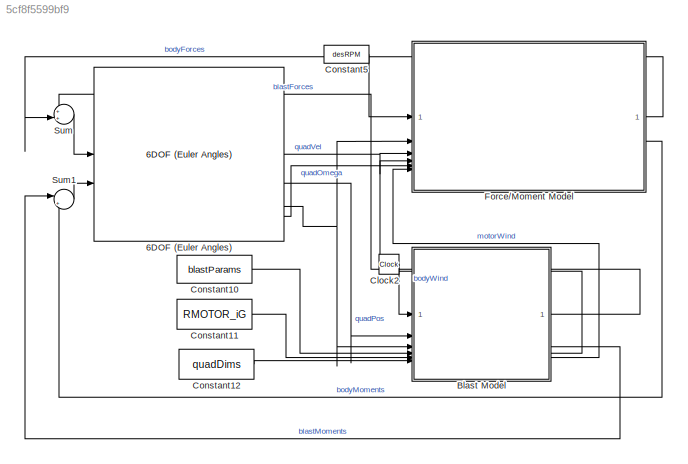
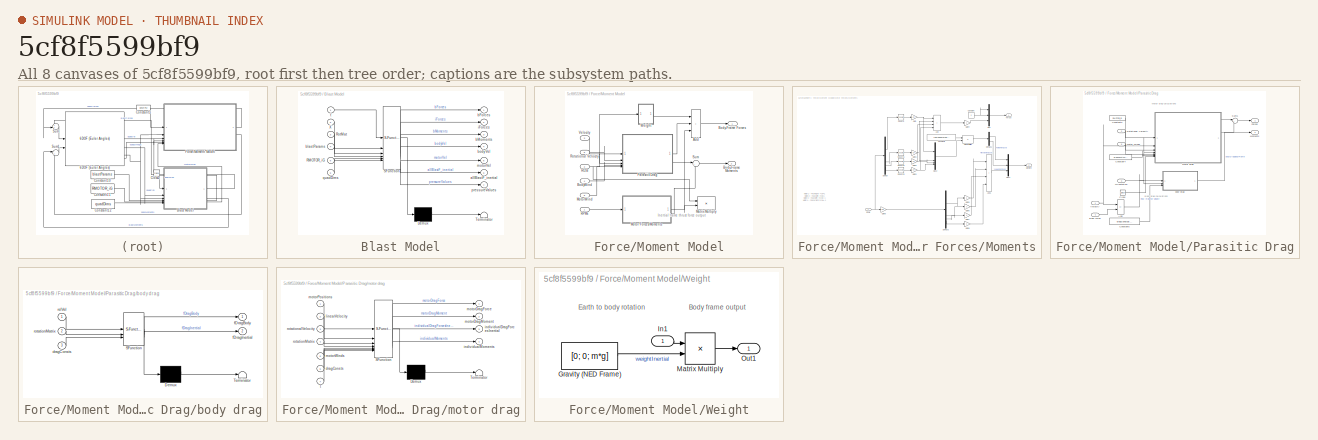
[diagram: thumbnail index - all 8 canvases of the model, root first then tree order]
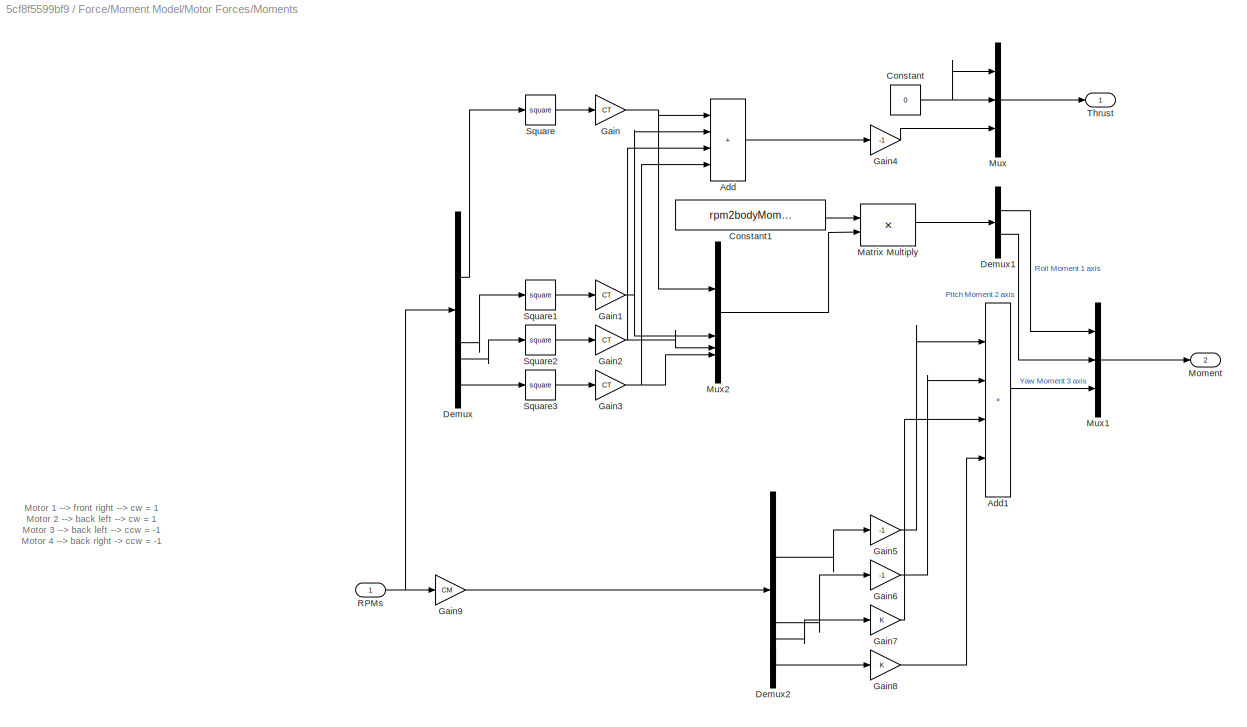
MODEL slx_5cf8f5599bf9
KIND model
CONFIG AbsTol = auto
CONFIG EnableMultiTasking = off
CONFIG FixedStep = auto
CONFIG MaxStep = auto
CONFIG MinStep = auto
CONFIG RelTol = 1e-3
CONFIG SampleTimeConstraint = Unconstrained
CONFIG SolverName = VariableStepAuto
CONFIG StartTime = 0.0
CONFIG StopTime = 10
BLOCK [Reference] 6DOF (Euler Angles)  REF=aerolibobsolete/6DOF (Euler Angles)
  SourceBlock = aerolibobsolete/6DOF (Euler Angles)
  SourceType = 6DOF EoM (Body Axis)
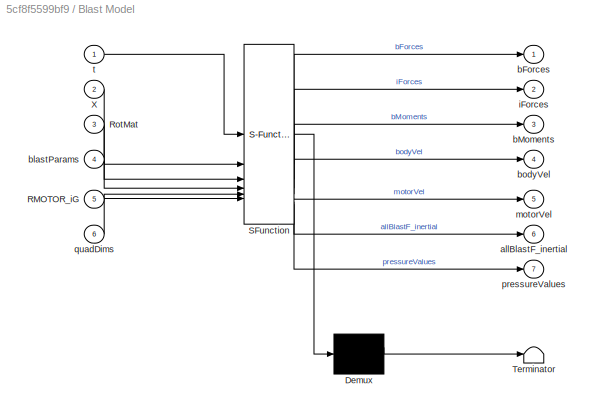
BLOCK [SubSystem] Blast Model
  ErrorFcn = Stateflow.Translate.translate
  PermitHierarchicalResolution = ExplicitOnly
  SFBlockType = MATLAB Function
  ShowPortLabels = none
  TreatAsAtomicUnit = on
BLOCK [Demux] Blast Model/ Demux 
  Outputs = 1
BLOCK [S-Function] Blast Model/ SFunction 
  EnableBusSupport = off
  FunctionName = sf_sfun
  PortCounts = [6 8]
  SFcnIsStateOwnerBlock = off
  SFunctionDeploymentMode = off
  Tag = Stateflow S-Function 3
BLOCK [Terminator] Blast Model/ Terminator 
BLOCK [Inport] Blast Model/RMOTOR_iG
  Port = 5
BLOCK [Inport] Blast Model/RotMat
  Port = 3
BLOCK [Inport] Blast Model/X
  Port = 2
BLOCK [Outport] Blast Model/allBlastF_inertial
  Port = 6
BLOCK [Outport] Blast Model/bForces
BLOCK [Outport] Blast Model/bMoments
  Port = 3
BLOCK [Inport] Blast Model/blastParams
  Port = 4
BLOCK [Outport] Blast Model/bodyVel
  Port = 4
BLOCK [Outport] Blast Model/iForces
  Port = 2
BLOCK [Outport] Blast Model/motorVel
  Port = 5
BLOCK [Outport] Blast Model/pressureValues
  Port = 7
BLOCK [Inport] Blast Model/quadDims
  Port = 6
BLOCK [Inport] Blast Model/t
BLOCK [Clock] Clock2
BLOCK [Constant] Constant10
  Value = blastParams
BLOCK [Constant] Constant11
  Value = RMOTOR_iG
BLOCK [Constant] Constant12
  Value = quadDims
BLOCK [Constant] Constant5
  Value = desRPM
BLOCK [SubSystem] Force//Moment Model
  ShowPortLabels = none
BLOCK [Sum] Force//Moment Model/Add
  IconShape = rectangular
  Inputs = +++
BLOCK [Outport] Force//Moment Model/Body-Frame Forces
BLOCK [Outport] Force//Moment Model/Body-Frame Moments
  Port = 2
BLOCK [Inport] Force//Moment Model/BodyWind
  Port = 4
BLOCK [Product] Force//Moment Model/Matrix Multiply
  Multiplication = Matrix(*)
BLOCK [SubSystem] Force//Moment Model/Motor Forces//Moments
BLOCK [Sum] Force//Moment Model/Motor Forces//Moments/Add
  IconShape = rectangular
  Inputs = ++++
BLOCK [Sum] Force//Moment Model/Motor Forces//Moments/Add1
  IconShape = rectangular
  Inputs = ++++
BLOCK [Constant] Force//Moment Model/Motor Forces//Moments/Constant
  Value = 0
BLOCK [Constant] Force//Moment Model/Motor Forces//Moments/Constant1
  Value = rpm2bodyMomentRollPitch
BLOCK [Demux] Force//Moment Model/Motor Forces//Moments/Demux
  NameLocation = left
BLOCK [Demux] Force//Moment Model/Motor Forces//Moments/Demux1
  Outputs = 2
BLOCK [Demux] Force//Moment Model/Motor Forces//Moments/Demux2
  NameLocation = left
BLOCK [Gain] Force//Moment Model/Motor Forces//Moments/Gain
  Gain = CT
BLOCK [Gain] Force//Moment Model/Motor Forces//Moments/Gain1
  Gain = CT
BLOCK [Gain] Force//Moment Model/Motor Forces//Moments/Gain2
  Gain = CT
BLOCK [Gain] Force//Moment Model/Motor Forces//Moments/Gain3
  Gain = CT
BLOCK [Gain] Force//Moment Model/Motor Forces//Moments/Gain4
  Gain = -1
BLOCK [Gain] Force//Moment Model/Motor Forces//Moments/Gain5
  Gain = -1
BLOCK [Gain] Force//Moment Model/Motor Forces//Moments/Gain6
  Gain = -1
BLOCK [Gain] Force//Moment Model/Motor Forces//Moments/Gain7
BLOCK [Gain] Force//Moment Model/Motor Forces//Moments/Gain8
BLOCK [Gain] Force//Moment Model/Motor Forces//Moments/Gain9
  Gain = CM
BLOCK [Product] Force//Moment Model/Motor Forces//Moments/Matrix Multiply
  Multiplication = Matrix(*)
BLOCK [Outport] Force//Moment Model/Motor Forces//Moments/Moment
  Port = 2
BLOCK [Mux] Force//Moment Model/Motor Forces//Moments/Mux
  DisplayOption = bar
  Inputs = 3
BLOCK [Mux] Force//Moment Model/Motor Forces//Moments/Mux1
  DisplayOption = bar
  Inputs = 3
BLOCK [Mux] Force//Moment Model/Motor Forces//Moments/Mux2
  DisplayOption = bar
BLOCK [Inport] Force//Moment Model/Motor Forces//Moments/RPMs
BLOCK [Math] Force//Moment Model/Motor Forces//Moments/Square
  Operator = square
BLOCK [Math] Force//Moment Model/Motor Forces//Moments/Square1
  Operator = square
BLOCK [Math] Force//Moment Model/Motor Forces//Moments/Square2
  Operator = square
BLOCK [Math] Force//Moment Model/Motor Forces//Moments/Square3
  Operator = square
BLOCK [Outport] Force//Moment Model/Motor Forces//Moments/Thrust
BLOCK [Inport] Force//Moment Model/MotorWind
  Port = 6
BLOCK [SubSystem] Force//Moment Model/Parasitic Drag
BLOCK [Sum] Force//Moment Model/Parasitic Drag/Add
  IconShape = rectangular
  Inputs = +-
BLOCK [Inport] Force//Moment Model/Parasitic Drag/Body Wind
  Port = 4
BLOCK [Clock] Force//Moment Model/Parasitic Drag/Clock
BLOCK [Constant] Force//Moment Model/Parasitic Drag/Constant3
  Value = RMOTOR_iG
BLOCK [Constant] Force//Moment Model/Parasitic Drag/Constant4
  Value = dragConstsMotor
BLOCK [Constant] Force//Moment Model/Parasitic Drag/Constant5
  Value = dragConstsBody
BLOCK [Outport] Force//Moment Model/Parasitic Drag/Forces
BLOCK [Outport] Force//Moment Model/Parasitic Drag/Moments
  Port = 2
BLOCK [Inport] Force//Moment Model/Parasitic Drag/Motor Winds
  Port = 5
BLOCK [Inport] Force//Moment Model/Parasitic Drag/Orientation
  Port = 3
BLOCK [Inport] Force//Moment Model/Parasitic Drag/Rotational Velocity
  Port = 2
BLOCK [Sum] Force//Moment Model/Parasitic Drag/Sum1
  Inputs = |++
BLOCK [Inport] Force//Moment Model/Parasitic Drag/Velocity
BLOCK [SubSystem] Force//Moment Model/Parasitic Drag/body drag
  ErrorFcn = Stateflow.Translate.translate
  PermitHierarchicalResolution = ExplicitOnly
  SFBlockType = MATLAB Function
  TreatAsAtomicUnit = on
BLOCK [Demux] Force//Moment Model/Parasitic Drag/body drag/ Demux 
  Outputs = 1
BLOCK [S-Function] Force//Moment Model/Parasitic Drag/body drag/ SFunction 
  EnableBusSupport = off
  FunctionName = sf_sfun
  PortCounts = [3 3]
  SFcnIsStateOwnerBlock = off
  SFunctionDeploymentMode = off
  Tag = Stateflow S-Function 6
BLOCK [Terminator] Force//Moment Model/Parasitic Drag/body drag/ Terminator 
BLOCK [Inport] Force//Moment Model/Parasitic Drag/body drag/dragConsts
  Port = 3
BLOCK [Outport] Force//Moment Model/Parasitic Drag/body drag/fDragBody
BLOCK [Outport] Force//Moment Model/Parasitic Drag/body drag/fDragInertial
  Port = 2
BLOCK [Inport] Force//Moment Model/Parasitic Drag/body drag/relVel
BLOCK [Inport] Force//Moment Model/Parasitic Drag/body drag/rotationMatrix
  Port = 2
BLOCK [SubSystem] Force//Moment Model/Parasitic Drag/motor drag
  ErrorFcn = Stateflow.Translate.translate
  PermitHierarchicalResolution = ExplicitOnly
  SFBlockType = MATLAB Function
  TreatAsAtomicUnit = on
BLOCK [Demux] Force//Moment Model/Parasitic Drag/motor drag/ Demux 
  Outputs = 1
BLOCK [S-Function] Force//Moment Model/Parasitic Drag/motor drag/ SFunction 
  EnableBusSupport = off
  FunctionName = sf_sfun
  PortCounts = [7 5]
  SFcnIsStateOwnerBlock = off
  SFunctionDeploymentMode = off
  Tag = Stateflow S-Function 5
BLOCK [Terminator] Force//Moment Model/Parasitic Drag/motor drag/ Terminator 
BLOCK [Inport] Force//Moment Model/Parasitic Drag/motor drag/dragConsts
  Port = 6
BLOCK [Outport] Force//Moment Model/Parasitic Drag/motor drag/individualDragForcesInertial
  Port = 3
BLOCK [Outport] Force//Moment Model/Parasitic Drag/motor drag/individualMoments
  Port = 4
BLOCK [Inport] Force//Moment Model/Parasitic Drag/motor drag/linearVelocity
  Port = 2
BLOCK [Outport] Force//Moment Model/Parasitic Drag/motor drag/motorDragForce
BLOCK [Outport] Force//Moment Model/Parasitic Drag/motor drag/motorDragMoment
  Port = 2
BLOCK [Inport] Force//Moment Model/Parasitic Drag/motor drag/motorPositions
BLOCK [Inport] Force//Moment Model/Parasitic Drag/motor drag/motorWinds
  Port = 5
BLOCK [Inport] Force//Moment Model/Parasitic Drag/motor drag/rotationMatrix
  Port = 4
BLOCK [Inport] Force//Moment Model/Parasitic Drag/motor drag/rotationalVelocity
  Port = 3
BLOCK [Inport] Force//Moment Model/Parasitic Drag/motor drag/t
  Port = 7
BLOCK [Inport] Force//Moment Model/RI2B
  Port = 2
BLOCK [Inport] Force//Moment Model/RPMs
BLOCK [Inport] Force//Moment Model/Rotational Velocity
  Port = 5
BLOCK [Sum] Force//Moment Model/Sum
  Inputs = |++
BLOCK [Inport] Force//Moment Model/Velocity
  Port = 3
BLOCK [SubSystem] Force//Moment Model/Weight
BLOCK [Constant] Force//Moment Model/Weight/Gravity (NED Frame)
  Value = [0; 0; m*g]
BLOCK [Inport] Force//Moment Model/Weight/In1
BLOCK [Product] Force//Moment Model/Weight/Matrix Multiply
  Multiplication = Matrix(*)
BLOCK [Outport] Force//Moment Model/Weight/Out1
BLOCK [Sum] Sum
  Inputs = ++|
  NameLocation = top
BLOCK [Sum] Sum1
  Inputs = |++
ANNOTATION Force//Moment Model: Inertial frame thrust force output
ANNOTATION Force//Moment Model/Motor Forces//Moments: Motor 1 --> front right --> cw = 1 Motor 2 --> back left --> cw = 1 Motor 3 --> back left --> ccw = -1 Motor 4 --> back right -> ccw = -1
ANNOTATION Force//Moment Model/Parasitic Drag: Body drag calculations
ANNOTATION Force//Moment Model/Parasitic Drag: Motor drag calculations
ANNOTATION Force//Moment Model/Weight: Body frame output
ANNOTATION Force//Moment Model/Weight: Earth to body rotation
LINE 6DOF (Euler Angles):1 -> Force//Moment Model:3
LINE 6DOF (Euler Angles):2 -> Blast Model:2
NET 6DOF (Euler Angles):4 -> Blast Model:3, Force//Moment Model:2
LINE 6DOF (Euler Angles):6 -> Force//Moment Model:5
LINE Blast Model:1 -> Sum:1
LINE Blast Model:3 -> Sum1:1
LINE Blast Model:4 -> Force//Moment Model:4
LINE Blast Model:5 -> Force//Moment Model:6
LINE Clock2:1 -> Blast Model:1
LINE Constant10:1 -> Blast Model:4
LINE Constant11:1 -> Blast Model:5
LINE Constant12:1 -> Blast Model:6
LINE Constant5:1 -> Force//Moment Model:1
LINE Force//Moment Model/Add:1 -> Force//Moment Model/Body-Frame Forces:1
LINE Force//Moment Model/BodyWind:1 -> Force//Moment Model/Parasitic Drag:4
LINE Force//Moment Model/Motor Forces//Moments/Add1:1 -> Force//Moment Model/Motor Forces//Moments/Mux1:3
LINE Force//Moment Model/Motor Forces//Moments/Add:1 -> Force//Moment Model/Motor Forces//Moments/Gain4:1
LINE Force//Moment Model/Motor Forces//Moments/Constant1:1 -> Force//Moment Model/Motor Forces//Moments/Matrix Multiply:1
NET Force//Moment Model/Motor Forces//Moments/Constant:1 -> Force//Moment Model/Motor Forces//Moments/Mux:1, Force//Moment Model/Motor Forces//Moments/Mux:2
LINE Force//Moment Model/Motor Forces//Moments/Demux1:1 -> Force//Moment Model/Motor Forces//Moments/Mux1:1
LINE Force//Moment Model/Motor Forces//Moments/Demux1:2 -> Force//Moment Model/Motor Forces//Moments/Mux1:2
LINE Force//Moment Model/Motor Forces//Moments/Demux2:1 -> Force//Moment Model/Motor Forces//Moments/Gain5:1
LINE Force//Moment Model/Motor Forces//Moments/Demux2:2 -> Force//Moment Model/Motor Forces//Moments/Gain6:1
LINE Force//Moment Model/Motor Forces//Moments/Demux2:3 -> Force//Moment Model/Motor Forces//Moments/Gain7:1
LINE Force//Moment Model/Motor Forces//Moments/Demux2:4 -> Force//Moment Model/Motor Forces//Moments/Gain8:1
LINE Force//Moment Model/Motor Forces//Moments/Demux:1 -> Force//Moment Model/Motor Forces//Moments/Square:1
LINE Force//Moment Model/Motor Forces//Moments/Demux:2 -> Force//Moment Model/Motor Forces//Moments/Square1:1
LINE Force//Moment Model/Motor Forces//Moments/Demux:3 -> Force//Moment Model/Motor Forces//Moments/Square2:1
LINE Force//Moment Model/Motor Forces//Moments/Demux:4 -> Force//Moment Model/Motor Forces//Moments/Square3:1
NET Force//Moment Model/Motor Forces//Moments/Gain1:1 -> Force//Moment Model/Motor Forces//Moments/Add:2, Force//Moment Model/Motor Forces//Moments/Mux2:2
NET Force//Moment Model/Motor Forces//Moments/Gain2:1 -> Force//Moment Model/Motor Forces//Moments/Add:3, Force//Moment Model/Motor Forces//Moments/Mux2:3
NET Force//Moment Model/Motor Forces//Moments/Gain3:1 -> Force//Moment Model/Motor Forces//Moments/Add:4, Force//Moment Model/Motor Forces//Moments/Mux2:4
LINE Force//Moment Model/Motor Forces//Moments/Gain4:1 -> Force//Moment Model/Motor Forces//Moments/Mux:3
LINE Force//Moment Model/Motor Forces//Moments/Gain5:1 -> Force//Moment Model/Motor Forces//Moments/Add1:1
LINE Force//Moment Model/Motor Forces//Moments/Gain6:1 -> Force//Moment Model/Motor Forces//Moments/Add1:2
LINE Force//Moment Model/Motor Forces//Moments/Gain7:1 -> Force//Moment Model/Motor Forces//Moments/Add1:3
LINE Force//Moment Model/Motor Forces//Moments/Gain8:1 -> Force//Moment Model/Motor Forces//Moments/Add1:4
LINE Force//Moment Model/Motor Forces//Moments/Gain9:1 -> Force//Moment Model/Motor Forces//Moments/Demux2:1
NET Force//Moment Model/Motor Forces//Moments/Gain:1 -> Force//Moment Model/Motor Forces//Moments/Add:1, Force//Moment Model/Motor Forces//Moments/Mux2:1
LINE Force//Moment Model/Motor Forces//Moments/Matrix Multiply:1 -> Force//Moment Model/Motor Forces//Moments/Demux1:1
LINE Force//Moment Model/Motor Forces//Moments/Mux1:1 -> Force//Moment Model/Motor Forces//Moments/Moment:1
LINE Force//Moment Model/Motor Forces//Moments/Mux2:1 -> Force//Moment Model/Motor Forces//Moments/Matrix Multiply:2
LINE Force//Moment Model/Motor Forces//Moments/Mux:1 -> Force//Moment Model/Motor Forces//Moments/Thrust:1
NET Force//Moment Model/Motor Forces//Moments/RPMs:1 -> Force//Moment Model/Motor Forces//Moments/Demux:1, Force//Moment Model/Motor Forces//Moments/Gain9:1
LINE Force//Moment Model/Motor Forces//Moments/Square1:1 -> Force//Moment Model/Motor Forces//Moments/Gain1:1
LINE Force//Moment Model/Motor Forces//Moments/Square2:1 -> Force//Moment Model/Motor Forces//Moments/Gain2:1
LINE Force//Moment Model/Motor Forces//Moments/Square3:1 -> Force//Moment Model/Motor Forces//Moments/Gain3:1
LINE Force//Moment Model/Motor Forces//Moments/Square:1 -> Force//Moment Model/Motor Forces//Moments/Gain:1
NET Force//Moment Model/Motor Forces//Moments:1 -> Force//Moment Model/Add:3, Force//Moment Model/Matrix Multiply:2
LINE Force//Moment Model/Motor Forces//Moments:2 -> Force//Moment Model/Sum:2
LINE Force//Moment Model/MotorWind:1 -> Force//Moment Model/Parasitic Drag:5
LINE Force//Moment Model/Parasitic Drag/Add:1 -> Force//Moment Model/Parasitic Drag/body drag:1
LINE Force//Moment Model/Parasitic Drag/Body Wind:1 -> Force//Moment Model/Parasitic Drag/Add:2
LINE Force//Moment Model/Parasitic Drag/Clock:1 -> Force//Moment Model/Parasitic Drag/motor drag:7
LINE Force//Moment Model/Parasitic Drag/Constant3:1 -> Force//Moment Model/Parasitic Drag/motor drag:1
LINE Force//Moment Model/Parasitic Drag/Constant4:1 -> Force//Moment Model/Parasitic Drag/motor drag:6
LINE Force//Moment Model/Parasitic Drag/Constant5:1 -> Force//Moment Model/Parasitic Drag/body drag:3
LINE Force//Moment Model/Parasitic Drag/Motor Winds:1 -> Force//Moment Model/Parasitic Drag/motor drag:5
NET Force//Moment Model/Parasitic Drag/Orientation:1 -> Force//Moment Model/Parasitic Drag/body drag:2, Force//Moment Model/Parasitic Drag/motor drag:4
LINE Force//Moment Model/Parasitic Drag/Rotational Velocity:1 -> Force//Moment Model/Parasitic Drag/motor drag:3
LINE Force//Moment Model/Parasitic Drag/Sum1:1 -> Force//Moment Model/Parasitic Drag/Forces:1
NET Force//Moment Model/Parasitic Drag/Velocity:1 -> Force//Moment Model/Parasitic Drag/Add:1, Force//Moment Model/Parasitic Drag/motor drag:2
LINE Force//Moment Model/Parasitic Drag/body drag:1 -> Force//Moment Model/Parasitic Drag/Sum1:2
LINE Force//Moment Model/Parasitic Drag/motor drag:1 -> Force//Moment Model/Parasitic Drag/Sum1:1
LINE Force//Moment Model/Parasitic Drag/motor drag:2 -> Force//Moment Model/Parasitic Drag/Moments:1
LINE Force//Moment Model/Parasitic Drag:1 -> Force//Moment Model/Add:2
LINE Force//Moment Model/Parasitic Drag:2 -> Force//Moment Model/Sum:1
NET Force//Moment Model/RI2B:1 -> Force//Moment Model/Matrix Multiply:1, Force//Moment Model/Parasitic Drag:3, Force//Moment Model/Weight:1
LINE Force//Moment Model/RPMs:1 -> Force//Moment Model/Motor Forces//Moments:1
LINE Force//Moment Model/Rotational Velocity:1 -> Force//Moment Model/Parasitic Drag:2
LINE Force//Moment Model/Sum:1 -> Force//Moment Model/Body-Frame Moments:1
LINE Force//Moment Model/Velocity:1 -> Force//Moment Model/Parasitic Drag:1
LINE Force//Moment Model/Weight/Gravity (NED Frame):1 -> Force//Moment Model/Weight/Matrix Multiply:2
LINE Force//Moment Model/Weight/In1:1 -> Force//Moment Model/Weight/Matrix Multiply:1
LINE Force//Moment Model/Weight/Matrix Multiply:1 -> Force//Moment Model/Weight/Out1:1
LINE Force//Moment Model/Weight:1 -> Force//Moment Model/Add:1
LINE Force//Moment Model:1 -> Sum:2
LINE Force//Moment Model:2 -> Sum1:2
LINE Sum1:1 -> 6DOF (Euler Angles):2
LINE Sum:1 -> 6DOF (Euler Angles):1
note: NET lines group one-source signal fan-out (src -> all destinations, sorted); 1:1 wires keep LINE
CHART Blast Model states=1 transitions=1
  STATE_LABEL 'eML_blk_kernel()'
  STATE_LABEL 'SCRIPT:\nfunction [bForces, iForces, bMoments, bodyVel, motorVel, allBlastF_inertial, pressureValues] = blastFMCalc(t, X, RotMat, blastParams, RMOTOR_iG, quadDims)\n%% Inputs:\n% t = current sim time\n% X = current quad position\n% RotMat = current quad orientation matrix earth to body frame\n% blastParams = [Time of hit, Overpressure, theta, psi, tau, c] = [t, Ps, theta, psi, tau, c]\n% RMOTOR_iG = Moto...<+3608ch>'
CHART Force//Moment Model/Parasitic Drag/motor drag states=1 transitions=1
  STATE_LABEL 'eML_blk_kernel()'
  STATE_LABEL 'SCRIPT:\nfunction [motorDragForce,motorDragMoment,individualDragForcesInertial,individualMoments] = motorDragCalc(motorPositions, linearVelocity, rotationalVelocity, rotationMatrix, motorWinds, dragConsts, t)\n% Function to calculate the drag force and moments for the motors\n% Inputs: \n%      motorPositions = Matrix of four position vectors denoting the position of each motor relative to the body (4...<+1612ch>'
CHART Force//Moment Model/Parasitic Drag/body drag states=1 transitions=1
  STATE_LABEL 'eML_blk_kernel()'
  STATE_LABEL "SCRIPT:\nfunction [fDragBody, fDragInertial] = bodyDragCalc(relVel, rotationMatrix, dragConsts)\n% Initialize\nfDragBody = zeros(1,3);\nfDragInertial = zeros(1,3);\n\n% Unpack\nRb2i = rotationMatrix';\nRi2b = rotationMatrix;\n\n% Calculate\nvecNorm = sqrt(sum(conj(relVel).*relVel));\nfDragBody = dragConsts*vecNorm.*relVel*Rb2i;\nfDragInertial = fDragBody*Ri2b;\n\nend"
CHART  states=0 transitions=0
CHART  states=0 transitions=0
CHART  states=0 transitions=0
